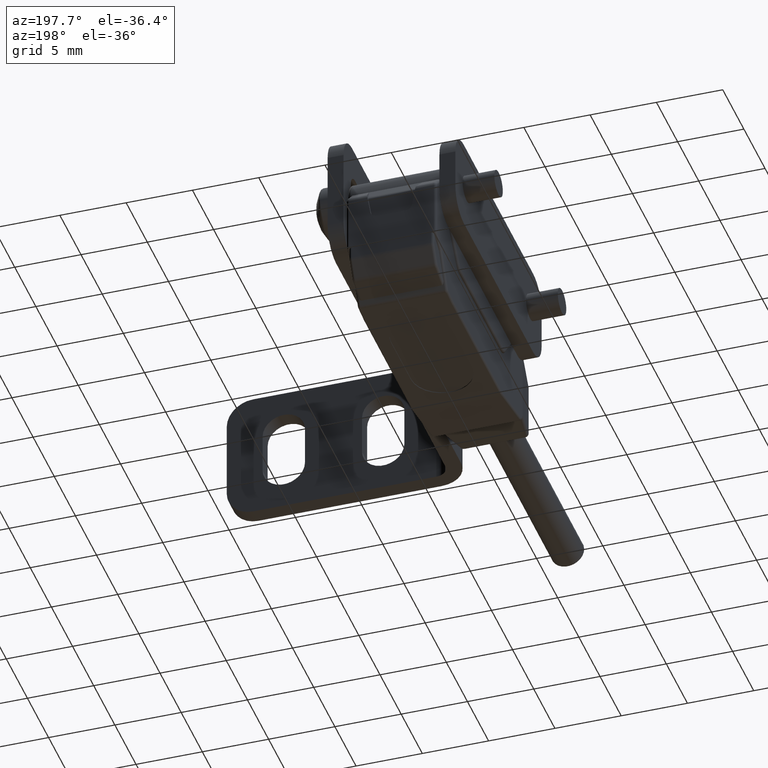
[diagram: clean part render]
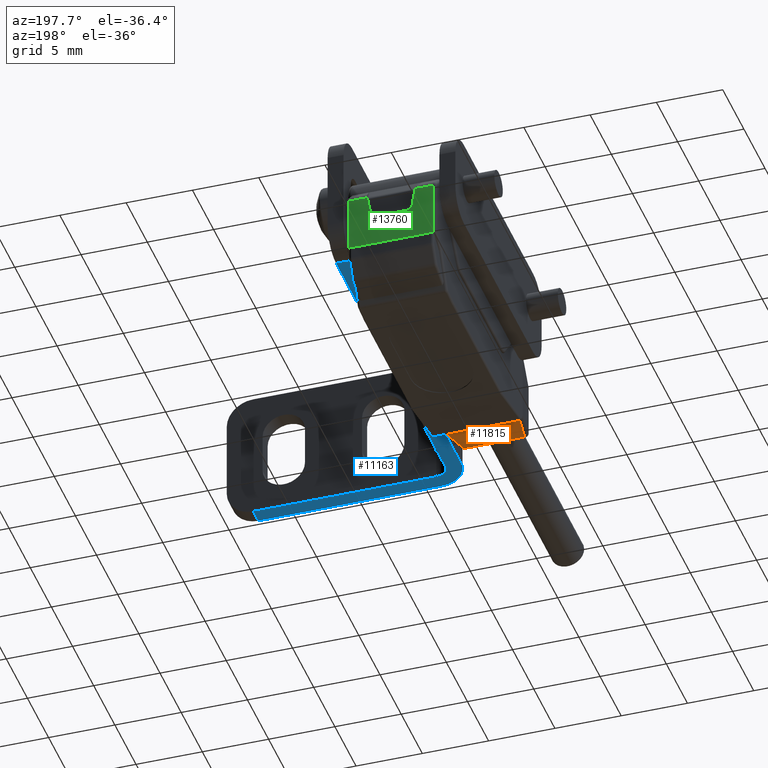
[diagram: same view with three faces highlighted in distinct colors, each labeled with its STEP entity id]
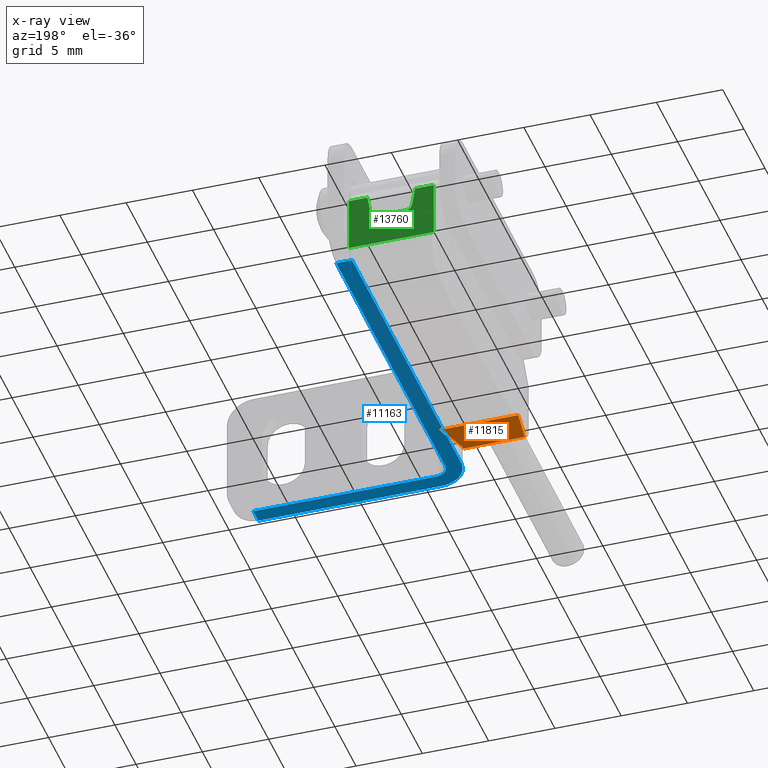
[diagram: x-ray of the same camera — body ghosted, the three highlighted faces saturated]
A machine part, auxiliary view with three faces highlighted in distinct colors.
The next image is the same camera in x-ray (body ghosted, the three faces saturated) — at least one of them is partly hidden behind the body in this view.
Their STEP definitions:

[orange] entity #11815 — the highlighted planar face has unit normal (0, 0.1736, 0.9848).
#8 = CARTESIAN_POINT ( 'NONE',  ( -2.899999999999999911, -6.655326925551870332, -5.000907277606881252 ) ) ;
#30 = LINE ( 'NONE', #4569, #8395 ) ;
#188 = ORIENTED_EDGE ( 'NONE', *, *, #1548, .T. ) ;
#949 = CARTESIAN_POINT ( 'NONE',  ( -2.903015811813198344, -6.655391402404967849, -5.000895908598053552 ) ) ;
#1393 = DIRECTION ( 'NONE',  ( -1.000000000000000000, 0.000000000000000000, 0.000000000000000000 ) ) ;
#1548 = EDGE_CURVE ( 'NONE', #2269, #15919, #7022, .T. ) ;
#1739 = CARTESIAN_POINT ( 'NONE',  ( 2.295860282025496968, -10.10742137885197067, -4.392209885536027869 ) ) ;
#2269 = VERTEX_POINT ( 'NONE', #6728 ) ;
#2328 = DIRECTION ( 'NONE',  ( -0.000000000000000000, 0.1736481776669345778, 0.9848077530122073542 ) ) ;
#3682 = CARTESIAN_POINT ( 'NONE',  ( 2.904523567716151167, -6.655520352445930321, -5.000873171226674962 ) ) ;
#3687 = ORIENTED_EDGE ( 'NONE', *, *, #11817, .T. ) ;
#3822 = DIRECTION ( 'NONE',  ( 1.000000000000000000, 0.000000000000000000, 0.000000000000000000 ) ) ;
#3877 = EDGE_CURVE ( 'NONE', #3944, #2269, #15446, .T. ) ;
#3944 = VERTEX_POINT ( 'NONE', #15909 ) ;
#4067 = CARTESIAN_POINT ( 'NONE',  ( 2.899999999999999911, -6.655326925551870332, -5.000907277606881252 ) ) ;
#4124 = CARTESIAN_POINT ( 'NONE',  ( -3.400050000000001571, -6.655326925551870332, -5.000907277606881252 ) ) ;
#4221 = ORIENTED_EDGE ( 'NONE', *, *, #3877, .T. ) ;
#4569 = CARTESIAN_POINT ( 'NONE',  ( -2.547590171378649515, -10.10742137885197067, -4.392209885536027869 ) ) ;
#4761 = ORIENTED_EDGE ( 'NONE', *, *, #10542, .T. ) ;
#5175 = VERTEX_POINT ( 'NONE', #5753 ) ;
#5625 = CARTESIAN_POINT ( 'NONE',  ( -3.400050000000001571, 1.930386856113873506, -6.514800265955134506 ) ) ;
#5753 = CARTESIAN_POINT ( 'NONE',  ( 2.899999999999999911, -6.655326925551870332, -5.000907277606881252 ) ) ;
#6728 = CARTESIAN_POINT ( 'NONE',  ( -2.904523567716102317, -6.655520352445930321, -5.000873171226674962 ) ) ;
#7022 =( BOUNDED_CURVE ( )  B_SPLINE_CURVE ( 3, ( #14482, #949, #16466, #19529 ),
 .UNSPECIFIED., .F., .T. ) 
 B_SPLINE_CURVE_WITH_KNOTS ( ( 4, 4 ),
 ( 3.126513523093339852, 3.141592653589795336 ),
 .UNSPECIFIED. ) 
 CURVE ( )  GEOMETRIC_REPRESENTATION_ITEM ( )  RATIONAL_B_SPLINE_CURVE ( ( 1.000000000000000000, 0.9999810517417160316, 0.9999810517417160316, 1.000000000000000000 ) ) 
 REPRESENTATION_ITEM ( '' )  );
#7290 = VECTOR ( 'NONE', #15157, 999.9999999999998863 ) ;
#7731 = CARTESIAN_POINT ( 'NONE',  ( -4.388640996391051985, 1.761327838975814242, -6.484990599901582442 ) ) ;
#8395 = VECTOR ( 'NONE', #1393, 1000.000000000000000 ) ;
#8427 = EDGE_CURVE ( 'NONE', #5175, #16841, #15854, .T. ) ;
#8555 = PLANE ( 'NONE',  #10568 ) ;
#8827 = VERTEX_POINT ( 'NONE', #1739 ) ;
#9682 = VECTOR ( 'NONE', #12081, 999.9999999999998863 ) ;
#9995 = ORIENTED_EDGE ( 'NONE', *, *, #8427, .T. ) ;
#10085 = CARTESIAN_POINT ( 'NONE',  ( 2.901507927336079540, -6.655326925551899642, -5.000907277606875923 ) ) ;
#10542 = EDGE_CURVE ( 'NONE', #16841, #8827, #14953, .T. ) ;
#10568 = AXIS2_PLACEMENT_3D ( 'NONE', #5625, #2328, #11624 ) ;
#11323 = FACE_OUTER_BOUND ( 'NONE', #11533, .T. ) ;
#11497 = VECTOR ( 'NONE', #3822, 1000.000000000000000 ) ;
#11533 = EDGE_LOOP ( 'NONE', ( #4221, #188, #3687, #9995, #4761, #14377 ) ) ;
#11624 = DIRECTION ( 'NONE',  ( 1.000000000000000000, 0.000000000000000000, 0.000000000000000000 ) ) ;
#11658 = CARTESIAN_POINT ( 'NONE',  ( 2.903015811813212110, -6.655391402404967849, -5.000895908598053552 ) ) ;
#11815 = ADVANCED_FACE ( 'NONE', ( #11323 ), #8555, .F. ) ;
#11817 = EDGE_CURVE ( 'NONE', #15919, #5175, #18928, .T. ) ;
#12081 = DIRECTION ( 'NONE',  ( -0.1710878697460389564, -0.9702875252478126988, 0.1710878697460394282 ) ) ;
#12083 = CARTESIAN_POINT ( 'NONE',  ( 2.904523567716151167, -6.655520352445930321, -5.000873171226674962 ) ) ;
#14377 = ORIENTED_EDGE ( 'NONE', *, *, #17092, .T. ) ;
#14482 = CARTESIAN_POINT ( 'NONE',  ( -2.904523567716102317, -6.655520352445930321, -5.000873171226674962 ) ) ;
#14953 = LINE ( 'NONE', #18233, #9682 ) ;
#15157 = DIRECTION ( 'NONE',  ( -0.1710878697460389564, 0.9702875252478126988, -0.1710878697460394282 ) ) ;
#15446 = LINE ( 'NONE', #7731, #7290 ) ;
#15854 =( BOUNDED_CURVE ( )  B_SPLINE_CURVE ( 3, ( #4067, #10085, #11658, #3682 ),
 .UNSPECIFIED., .F., .T. ) 
 B_SPLINE_CURVE_WITH_KNOTS ( ( 4, 4 ),
 ( 3.141592653589795336, 3.156671784086254817 ),
 .UNSPECIFIED. ) 
 CURVE ( )  GEOMETRIC_REPRESENTATION_ITEM ( )  RATIONAL_B_SPLINE_CURVE ( ( 1.000000000000000000, 0.9999810517417160316, 0.9999810517417160316, 1.000000000000000000 ) ) 
 REPRESENTATION_ITEM ( '' )  );
#15909 = CARTESIAN_POINT ( 'NONE',  ( -2.295860282025455223, -10.10742137885197067, -4.392209885536027869 ) ) ;
#15919 = VERTEX_POINT ( 'NONE', #8 ) ;
#16466 = CARTESIAN_POINT ( 'NONE',  ( -2.901507927336006709, -6.655326925551899642, -5.000907277606875923 ) ) ;
#16841 = VERTEX_POINT ( 'NONE', #12083 ) ;
#17092 = EDGE_CURVE ( 'NONE', #8827, #3944, #30, .T. ) ;
#18233 = CARTESIAN_POINT ( 'NONE',  ( 4.189594866900348435, 0.6324811435297548190, -6.285944470410878893 ) ) ;
#18928 = LINE ( 'NONE', #4124, #11497 ) ;
#19529 = CARTESIAN_POINT ( 'NONE',  ( -2.899999999999999911, -6.655326925551870332, -5.000907277606881252 ) ) ;

[blue] entity #11163 — the highlighted planar face has unit normal (-0, -0, 1).
#21 = DIRECTION ( 'NONE',  ( -3.869979201885200109E-18, -6.591949208711869424E-17, 1.000000000000000000 ) ) ;
#151 = EDGE_CURVE ( 'NONE', #11929, #9776, #9461, .T. ) ;
#586 = DIRECTION ( 'NONE',  ( -1.299455573272636135E-32, 6.591949208711869424E-17, -1.000000000000000000 ) ) ;
#667 = DIRECTION ( 'NONE',  ( 0.000000000000000000, -6.591949208711869424E-17, 1.000000000000000000 ) ) ;
#811 = ORIENTED_EDGE ( 'NONE', *, *, #151, .F. ) ;
#920 = LINE ( 'NONE', #17619, #1432 ) ;
#1069 = EDGE_CURVE ( 'NONE', #1303, #9776, #19058, .T. ) ;
#1176 = ORIENTED_EDGE ( 'NONE', *, *, #3040, .T. ) ;
#1303 = VERTEX_POINT ( 'NONE', #5115 ) ;
#1432 = VECTOR ( 'NONE', #10098, 1000.000000000000000 ) ;
#1510 = VERTEX_POINT ( 'NONE', #10225 ) ;
#1614 = EDGE_CURVE ( 'NONE', #1701, #16881, #1644, .T. ) ;
#1644 = LINE ( 'NONE', #15272, #18296 ) ;
#1701 = VERTEX_POINT ( 'NONE', #9439 ) ;
#2969 = DIRECTION ( 'NONE',  ( 0.000000000000000000, -1.000000000000000000, -6.591949208711869424E-17 ) ) ;
#2996 = AXIS2_PLACEMENT_3D ( 'NONE', #16988, #667, #14105 ) ;
#3040 = EDGE_CURVE ( 'NONE', #11929, #14635, #9254, .T. ) ;
#3209 = LINE ( 'NONE', #16654, #14386 ) ;
#3272 = CARTESIAN_POINT ( 'NONE',  ( 3.600000000000047606, 14.74467307430276541, -2.999092722393029042 ) ) ;
#3371 = VECTOR ( 'NONE', #12612, 1000.000000000000000 ) ;
#4208 = AXIS2_PLACEMENT_3D ( 'NONE', #10204, #586, #18643 ) ;
#4520 = CARTESIAN_POINT ( 'NONE',  ( 5.799999999999999822, -15.75532692569723459, -2.999092722393029042 ) ) ;
#4885 = CARTESIAN_POINT ( 'NONE',  ( 4.800000000000002487, -13.55532692569723530, -2.999092722393029042 ) ) ;
#5115 = CARTESIAN_POINT ( 'NONE',  ( 19.60000000000001918, -14.55532692569723530, -2.999092722393029042 ) ) ;
#6724 = CARTESIAN_POINT ( 'NONE',  ( 19.60000000000001918, -15.75532692569723459, -2.999092722393029042 ) ) ;
#6877 = CARTESIAN_POINT ( 'NONE',  ( 3.600000000000047606, 12.24467307430276719, -2.999092722393029042 ) ) ;
#8589 = EDGE_CURVE ( 'NONE', #16881, #1510, #16258, .T. ) ;
#9254 = CIRCLE ( 'NONE', #4208, 2.200000000000000622 ) ;
#9378 = VECTOR ( 'NONE', #11446, 1000.000000000000000 ) ;
#9439 = CARTESIAN_POINT ( 'NONE',  ( 4.800000000000002487, 12.24467307430276719, -2.999092722393029042 ) ) ;
#9461 = LINE ( 'NONE', #11041, #3371 ) ;
#9776 = VERTEX_POINT ( 'NONE', #15435 ) ;
#9998 = CARTESIAN_POINT ( 'NONE',  ( 3.600000000000047606, 12.24467307430276719, -2.999092722393029042 ) ) ;
#10098 = DIRECTION ( 'NONE',  ( 1.082107889691983941E-16, -1.000000000000000000, -6.591949208711869424E-17 ) ) ;
#10204 = CARTESIAN_POINT ( 'NONE',  ( 5.799999999999999822, -13.55532692569723530, -2.999092722393029042 ) ) ;
#10225 = CARTESIAN_POINT ( 'NONE',  ( 5.799999999999999822, -14.55532692569723530, -2.999092722393029042 ) ) ;
#10430 = EDGE_CURVE ( 'NONE', #1303, #1510, #3209, .T. ) ;
#10774 = FACE_OUTER_BOUND ( 'NONE', #14275, .T. ) ;
#11041 = CARTESIAN_POINT ( 'NONE',  ( 3.600000000000047606, -15.75532692569723459, -2.999092722393029042 ) ) ;
#11163 = ADVANCED_FACE ( 'NONE', ( #10774 ), #12352, .F. ) ;
#11446 = DIRECTION ( 'NONE',  ( 1.082107889691983941E-16, -1.000000000000000000, -6.591949208711869424E-17 ) ) ;
#11461 = LINE ( 'NONE', #9998, #11540 ) ;
#11540 = VECTOR ( 'NONE', #14339, 1000.000000000000000 ) ;
#11929 = VERTEX_POINT ( 'NONE', #4520 ) ;
#12097 = DIRECTION ( 'NONE',  ( 1.082107889691983941E-16, -1.000000000000000000, -6.591949208711869424E-17 ) ) ;
#12352 = PLANE ( 'NONE',  #15020 ) ;
#12612 = DIRECTION ( 'NONE',  ( 1.000000000000000000, 1.082107889691983941E-16, 3.869979201885204731E-18 ) ) ;
#13746 = ORIENTED_EDGE ( 'NONE', *, *, #18244, .F. ) ;
#14105 = DIRECTION ( 'NONE',  ( 1.000000000000000000, 0.000000000000000000, 0.000000000000000000 ) ) ;
#14275 = EDGE_LOOP ( 'NONE', ( #17292, #14623, #811, #1176, #13746, #16486, #15277, #16518 ) ) ;
#14339 = DIRECTION ( 'NONE',  ( 1.000000000000000000, 1.082107889691983941E-16, 3.869979201885204731E-18 ) ) ;
#14386 = VECTOR ( 'NONE', #19401, 1000.000000000000000 ) ;
#14516 = VERTEX_POINT ( 'NONE', #6877 ) ;
#14623 = ORIENTED_EDGE ( 'NONE', *, *, #1069, .T. ) ;
#14635 = VERTEX_POINT ( 'NONE', #18039 ) ;
#15020 = AXIS2_PLACEMENT_3D ( 'NONE', #3272, #21, #2969 ) ;
#15272 = CARTESIAN_POINT ( 'NONE',  ( 4.800000000000002487, 14.74467307430276541, -2.999092722393029042 ) ) ;
#15277 = ORIENTED_EDGE ( 'NONE', *, *, #1614, .T. ) ;
#15435 = CARTESIAN_POINT ( 'NONE',  ( 19.60000000000001918, -15.75532692569723459, -2.999092722393029042 ) ) ;
#16258 = CIRCLE ( 'NONE', #2996, 1.000000000000000000 ) ;
#16486 = ORIENTED_EDGE ( 'NONE', *, *, #17021, .T. ) ;
#16518 = ORIENTED_EDGE ( 'NONE', *, *, #8589, .T. ) ;
#16654 = CARTESIAN_POINT ( 'NONE',  ( 21.60000000000002274, -14.55532692569723530, -2.999092722393029042 ) ) ;
#16881 = VERTEX_POINT ( 'NONE', #4885 ) ;
#16988 = CARTESIAN_POINT ( 'NONE',  ( 5.799999999999999822, -13.55532692569723530, -2.999092722393029042 ) ) ;
#17021 = EDGE_CURVE ( 'NONE', #14516, #1701, #11461, .T. ) ;
#17292 = ORIENTED_EDGE ( 'NONE', *, *, #10430, .F. ) ;
#17619 = CARTESIAN_POINT ( 'NONE',  ( 3.600000000000047606, 14.74467307430276541, -2.999092722393029042 ) ) ;
#18039 = CARTESIAN_POINT ( 'NONE',  ( 3.600000000000047606, -13.55532692569723530, -2.999092722393029042 ) ) ;
#18244 = EDGE_CURVE ( 'NONE', #14516, #14635, #920, .T. ) ;
#18296 = VECTOR ( 'NONE', #12097, 1000.000000000000000 ) ;
#18643 = DIRECTION ( 'NONE',  ( 1.000000000000000000, 0.000000000000000000, 0.000000000000000000 ) ) ;
#19058 = LINE ( 'NONE', #6724, #9378 ) ;
#19401 = DIRECTION ( 'NONE',  ( -1.000000000000000000, -1.082107889691983941E-16, -3.869979201885204731E-18 ) ) ;

[green] entity #13760 — the highlighted planar face has unit normal (0, -1, 0).
#91 = VECTOR ( 'NONE', #4090, 1000.000000000000000 ) ;
#515 = EDGE_CURVE ( 'NONE', #13192, #14297, #16842, .T. ) ;
#640 = VERTEX_POINT ( 'NONE', #14350 ) ;
#712 = EDGE_CURVE ( 'NONE', #14297, #7981, #5588, .T. ) ;
#761 = DIRECTION ( 'NONE',  ( 1.000000000000000000, 1.045014142154773872E-16, 2.161850253356914880E-32 ) ) ;
#836 = CARTESIAN_POINT ( 'NONE',  ( 1.076436455808502224, 14.24467307444811404, -0.5009072769823277316 ) ) ;
#855 = VERTEX_POINT ( 'NONE', #1403 ) ;
#882 = VERTEX_POINT ( 'NONE', #7832 ) ;
#899 = ORIENTED_EDGE ( 'NONE', *, *, #515, .T. ) ;
#1177 = VERTEX_POINT ( 'NONE', #16322 ) ;
#1403 = CARTESIAN_POINT ( 'NONE',  ( -3.000000000000002665, 14.24467307444811404, -3.400907277606876722 ) ) ;
#1412 = LINE ( 'NONE', #1627, #17837 ) ;
#1473 = DIRECTION ( 'NONE',  ( 1.000000000000000000, 1.045014142154773872E-16, -1.264749097803871874E-35 ) ) ;
#1531 = DIRECTION ( 'NONE',  ( -0.1643989873053574302, 7.579096449296256824E-17, 0.9863939238321436376 ) ) ;
#1627 = CARTESIAN_POINT ( 'NONE',  ( -1.500000000000001332, 14.24467307444811404, -1.000907276982328176 ) ) ;
#1966 = EDGE_CURVE ( 'NONE', #13003, #14768, #15063, .T. ) ;
#2011 = DIRECTION ( 'NONE',  ( 2.167036782501019946E-32, -1.210269839215773899E-19, -1.000000000000000000 ) ) ;
#2041 = AXIS2_PLACEMENT_3D ( 'NONE', #836, #3998, #13067 ) ;
#2228 = ORIENTED_EDGE ( 'NONE', *, *, #712, .T. ) ;
#2395 = CARTESIAN_POINT ( 'NONE',  ( -3.500000000000003109, 14.24467307444811404, -0.8509072776080803813 ) ) ;
#2508 = CARTESIAN_POINT ( 'NONE',  ( 2.999999999999999112, 14.24467307444811404, -3.400907277606876722 ) ) ;
#2541 = CARTESIAN_POINT ( 'NONE',  ( 1.076436455808502224, 14.24467307444811404, -1.000907276982328176 ) ) ;
#2939 = CARTESIAN_POINT ( 'NONE',  ( 3.200000000000001510, 14.24467307444811404, -3.400907277606876722 ) ) ;
#3880 = CARTESIAN_POINT ( 'NONE',  ( -3.400000000000000355, 14.24467307444811404, -3.400907277606876722 ) ) ;
#3895 = CARTESIAN_POINT ( 'NONE',  ( -1.569633417724550117, 14.24467307444811404, -0.5831067706350279156 ) ) ;
#3998 = DIRECTION ( 'NONE',  ( 1.045014142154773872E-16, -1.000000000000000000, 0.000000000000000000 ) ) ;
#4090 = DIRECTION ( 'NONE',  ( -1.000000000000000000, 0.000000000000000000, 3.147683726570805050E-17 ) ) ;
#4248 = VECTOR ( 'NONE', #761, 1000.000000000000000 ) ;
#4348 = ORIENTED_EDGE ( 'NONE', *, *, #4620, .F. ) ;
#4619 = LINE ( 'NONE', #4724, #7722 ) ;
#4620 = EDGE_CURVE ( 'NONE', #855, #7981, #9171, .T. ) ;
#4724 = CARTESIAN_POINT ( 'NONE',  ( -3.200000000000001510, 14.24467307444811404, 0.9990927228196166965 ) ) ;
#4872 = CARTESIAN_POINT ( 'NONE',  ( -3.200000000000001510, 14.24467307444811404, 0.7919859416194718893 ) ) ;
#5311 = ORIENTED_EDGE ( 'NONE', *, *, #15529, .F. ) ;
#5588 = LINE ( 'NONE', #3880, #91 ) ;
#5951 = EDGE_CURVE ( 'NONE', #1177, #13192, #11236, .T. ) ;
#6946 = FACE_OUTER_BOUND ( 'NONE', #12865, .T. ) ;
#7124 = AXIS2_PLACEMENT_3D ( 'NONE', #19345, #17590, #15891 ) ;
#7218 = LINE ( 'NONE', #8691, #16919 ) ;
#7722 = VECTOR ( 'NONE', #17964, 1000.000000000000000 ) ;
#7832 = CARTESIAN_POINT ( 'NONE',  ( -3.200000000000001510, 14.24467307444811404, -3.400907277606876722 ) ) ;
#7943 = CARTESIAN_POINT ( 'NONE',  ( 3.200000000000001510, 14.24467307444811404, -2.600907277273182938 ) ) ;
#7981 = VERTEX_POINT ( 'NONE', #2508 ) ;
#8064 = CIRCLE ( 'NONE', #7124, 0.5000000000000000000 ) ;
#8247 = VERTEX_POINT ( 'NONE', #4872 ) ;
#8461 = DIRECTION ( 'NONE',  ( 1.000000000000000000, 1.045014142154773872E-16, 2.161850253356914880E-32 ) ) ;
#8502 = LINE ( 'NONE', #19179, #10581 ) ;
#8598 = CARTESIAN_POINT ( 'NONE',  ( -1.076436455808453596, 14.24467307444811404, -1.000907276982328176 ) ) ;
#8691 = CARTESIAN_POINT ( 'NONE',  ( -3.400000000000000355, 14.24467307444811404, -3.400907277606876722 ) ) ;
#8921 = DIRECTION ( 'NONE',  ( -1.000000000000000000, -1.045014142154773872E-16, -2.161850253356914880E-32 ) ) ;
#9171 = LINE ( 'NONE', #10665, #12359 ) ;
#9602 = VECTOR ( 'NONE', #8461, 1000.000000000000000 ) ;
#9658 = CARTESIAN_POINT ( 'NONE',  ( 3.200000000000001510, 14.24467307444811404, 0.7919859416194718893 ) ) ;
#9910 = CIRCLE ( 'NONE', #2041, 0.5000000000000000000 ) ;
#9933 = ORIENTED_EDGE ( 'NONE', *, *, #14813, .F. ) ;
#10138 = CARTESIAN_POINT ( 'NONE',  ( -1.833333333300303458, 14.24467307444811404, 0.7919859416194718893 ) ) ;
#10581 = VECTOR ( 'NONE', #11756, 1000.000000000000114 ) ;
#10665 = CARTESIAN_POINT ( 'NONE',  ( -3.500000000000003109, 14.24467307444811404, -3.400907277606876722 ) ) ;
#11236 = LINE ( 'NONE', #9658, #4248 ) ;
#11411 = EDGE_CURVE ( 'NONE', #14522, #14768, #8064, .T. ) ;
#11547 = ORIENTED_EDGE ( 'NONE', *, *, #18591, .T. ) ;
#11756 = DIRECTION ( 'NONE',  ( -0.1643989873053574302, -1.101508178309669634E-16, -0.9863939238321436376 ) ) ;
#11764 = EDGE_CURVE ( 'NONE', #8247, #13285, #19138, .T. ) ;
#11859 = EDGE_CURVE ( 'NONE', #882, #8247, #4619, .T. ) ;
#12359 = VECTOR ( 'NONE', #1473, 1000.000000000000000 ) ;
#12865 = EDGE_LOOP ( 'NONE', ( #4348, #11547, #12932, #17432, #5311, #13195, #19045, #13399, #9933, #17714, #899, #2228 ) ) ;
#12932 = ORIENTED_EDGE ( 'NONE', *, *, #11859, .T. ) ;
#12959 = DIRECTION ( 'NONE',  ( 0.000000000000000000, -1.210269839215773899E-19, -1.000000000000000000 ) ) ;
#13003 = VERTEX_POINT ( 'NONE', #2541 ) ;
#13067 = DIRECTION ( 'NONE',  ( 0.000000000000000000, 0.000000000000000000, 1.000000000000000000 ) ) ;
#13192 = VERTEX_POINT ( 'NONE', #15280 ) ;
#13195 = ORIENTED_EDGE ( 'NONE', *, *, #11411, .T. ) ;
#13285 = VERTEX_POINT ( 'NONE', #18432 ) ;
#13399 = ORIENTED_EDGE ( 'NONE', *, *, #15445, .T. ) ;
#13760 = ADVANCED_FACE ( 'NONE', ( #6946 ), #14340, .F. ) ;
#14297 = VERTEX_POINT ( 'NONE', #2939 ) ;
#14340 = PLANE ( 'NONE',  #17924 ) ;
#14350 = CARTESIAN_POINT ( 'NONE',  ( 1.569633417724550117, 14.24467307444811404, -0.5831067706350279156 ) ) ;
#14517 = DIRECTION ( 'NONE',  ( -1.000000000000000000, 0.000000000000000000, 3.147683726570805050E-17 ) ) ;
#14522 = VERTEX_POINT ( 'NONE', #3895 ) ;
#14768 = VERTEX_POINT ( 'NONE', #8598 ) ;
#14813 = EDGE_CURVE ( 'NONE', #1177, #640, #8502, .T. ) ;
#14851 = CARTESIAN_POINT ( 'NONE',  ( 1.499999999999994449, 14.24467307444811404, -1.000907276982328176 ) ) ;
#15063 = LINE ( 'NONE', #14851, #17651 ) ;
#15280 = CARTESIAN_POINT ( 'NONE',  ( 3.200000000000001510, 14.24467307444811404, 0.7919859416194718893 ) ) ;
#15445 = EDGE_CURVE ( 'NONE', #13003, #640, #9910, .T. ) ;
#15529 = EDGE_CURVE ( 'NONE', #14522, #13285, #1412, .T. ) ;
#15891 = DIRECTION ( 'NONE',  ( 0.000000000000000000, 0.000000000000000000, 1.000000000000000000 ) ) ;
#16322 = CARTESIAN_POINT ( 'NONE',  ( 1.798815536433649775, 14.24467307444811404, 0.7919859416194718893 ) ) ;
#16507 = VECTOR ( 'NONE', #2011, 1000.000000000000000 ) ;
#16842 = LINE ( 'NONE', #7943, #16507 ) ;
#16919 = VECTOR ( 'NONE', #14517, 1000.000000000000000 ) ;
#17432 = ORIENTED_EDGE ( 'NONE', *, *, #11764, .T. ) ;
#17590 = DIRECTION ( 'NONE',  ( 1.045014142154773872E-16, -1.000000000000000000, 0.000000000000000000 ) ) ;
#17651 = VECTOR ( 'NONE', #8921, 1000.000000000000000 ) ;
#17714 = ORIENTED_EDGE ( 'NONE', *, *, #5951, .T. ) ;
#17715 = DIRECTION ( 'NONE',  ( 1.045014142154773872E-16, -1.000000000000000000, 1.210269839215773899E-19 ) ) ;
#17837 = VECTOR ( 'NONE', #1531, 1000.000000000000114 ) ;
#17924 = AXIS2_PLACEMENT_3D ( 'NONE', #2395, #17715, #12959 ) ;
#17964 = DIRECTION ( 'NONE',  ( -2.167036782501019946E-32, 1.210269839215773899E-19, 1.000000000000000000 ) ) ;
#18432 = CARTESIAN_POINT ( 'NONE',  ( -1.798815536433649775, 14.24467307444811404, 0.7919859416194718893 ) ) ;
#18591 = EDGE_CURVE ( 'NONE', #855, #882, #7218, .T. ) ;
#19045 = ORIENTED_EDGE ( 'NONE', *, *, #1966, .F. ) ;
#19138 = LINE ( 'NONE', #10138, #9602 ) ;
#19179 = CARTESIAN_POINT ( 'NONE',  ( 1.499999999999994449, 14.24467307444811404, -1.000907276982328176 ) ) ;
#19345 = CARTESIAN_POINT ( 'NONE',  ( -1.076436455808453596, 14.24467307444811404, -0.5009072769823277316 ) ) ;